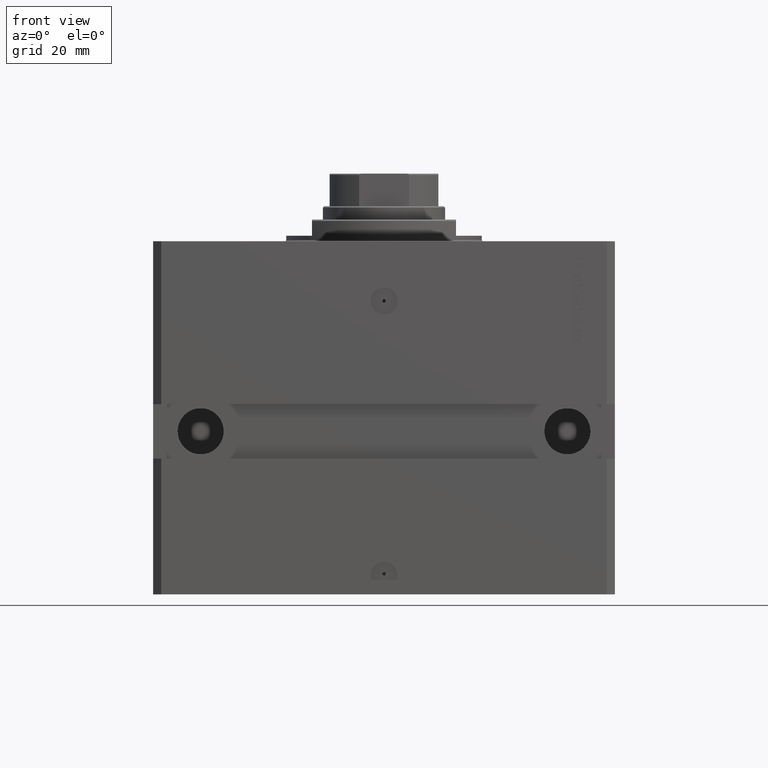
[diagram: clean part render]
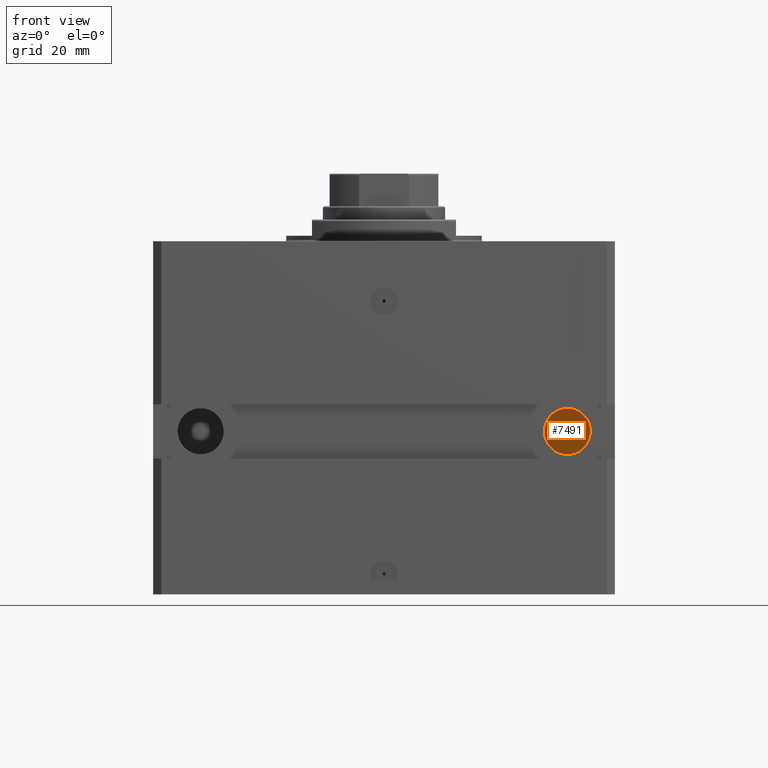
[diagram: same view with one face highlighted and labeled with its STEP entity id]
A machine part, front view. The second image highlights one B-rep face of the part: STEP entity #7491.
In plain terms, the highlighted planar face has unit normal (0, -1, -0).
Its self-contained STEP definition (entity closure, byte-faithful):
#4172 = CARTESIAN_POINT ( 'NONE',  ( 76.00000000000001421, 28.00000000000003908, -70.00000000000000000 ) ) ;
#5103 = CARTESIAN_POINT ( 'NONE',  ( 67.50000000000001421, 28.00000000000003908, -70.00000000000000000 ) ) ;
#6152 = EDGE_LOOP ( 'NONE', ( #34132, #44234 ) ) ;
#7491 = ADVANCED_FACE ( 'NONE', ( #42717 ), #36020, .T. ) ;
#7987 = CARTESIAN_POINT ( 'NONE',  ( 59.00000000000002132, 28.00000000000003908, -70.00000000000000000 ) ) ;
#9857 = AXIS2_PLACEMENT_3D ( 'NONE', #27893, #14029, #41990 ) ;
#11072 = DIRECTION ( 'NONE',  ( 1.000000000000000000, 1.041232428609250764E-16, 0.000000000000000000 ) ) ;
#14029 = DIRECTION ( 'NONE',  ( 1.041232428609250764E-16, -1.000000000000000000, -6.162975822039154730E-33 ) ) ;
#17216 = CIRCLE ( 'NONE', #9857, 8.499999999999992895 ) ;
#17401 = AXIS2_PLACEMENT_3D ( 'NONE', #39490, #42940, #11072 ) ;
#18221 = AXIS2_PLACEMENT_3D ( 'NONE', #5103, #25694, #21991 ) ;
#21991 = DIRECTION ( 'NONE',  ( 1.000000000000000000, 0.000000000000000000, 0.000000000000000000 ) ) ;
#24244 = EDGE_CURVE ( 'NONE', #43374, #40384, #17216, .T. ) ;
#25694 = DIRECTION ( 'NONE',  ( 1.041232428609250764E-16, -1.000000000000000000, -6.162975822039154730E-33 ) ) ;
#27893 = CARTESIAN_POINT ( 'NONE',  ( 67.50000000000001421, 28.00000000000003908, -70.00000000000000000 ) ) ;
#34132 = ORIENTED_EDGE ( 'NONE', *, *, #24244, .T. ) ;
#36020 = PLANE ( 'NONE',  #17401 ) ;
#36186 = EDGE_CURVE ( 'NONE', #40384, #43374, #37391, .T. ) ;
#37391 = CIRCLE ( 'NONE', #18221, 8.499999999999992895 ) ;
#39490 = CARTESIAN_POINT ( 'NONE',  ( -3.475118310299160374E-15, 28.00000000000002487, -4.005934284325450574E-31 ) ) ;
#40384 = VERTEX_POINT ( 'NONE', #7987 ) ;
#41990 = DIRECTION ( 'NONE',  ( 1.000000000000000000, 0.000000000000000000, 0.000000000000000000 ) ) ;
#42717 = FACE_OUTER_BOUND ( 'NONE', #6152, .T. ) ;
#42940 = DIRECTION ( 'NONE',  ( 1.041232428609250764E-16, -1.000000000000000000, -6.162975822039154730E-33 ) ) ;
#43374 = VERTEX_POINT ( 'NONE', #4172 ) ;
#44234 = ORIENTED_EDGE ( 'NONE', *, *, #36186, .T. ) ;